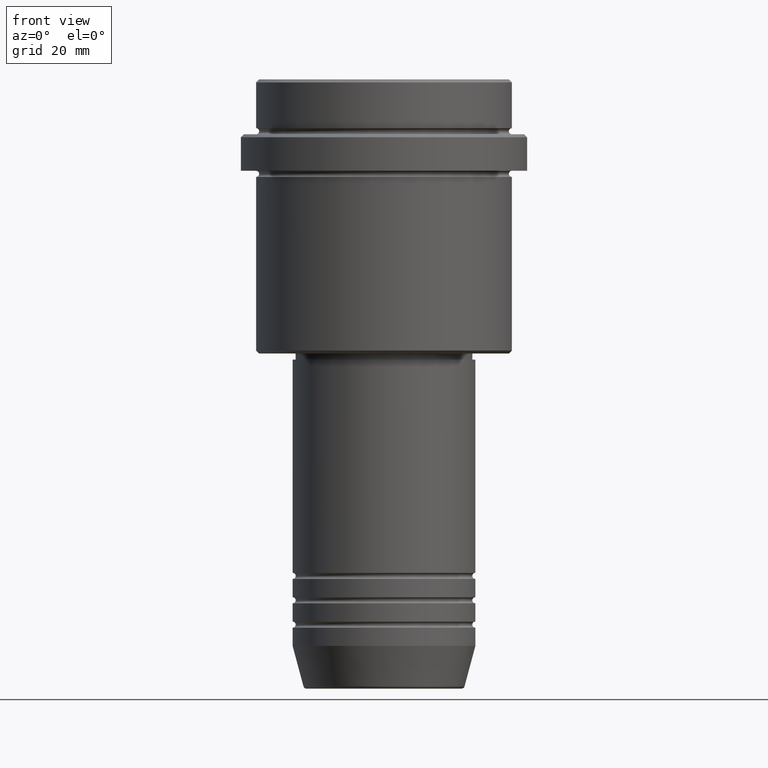
[diagram: clean part render]
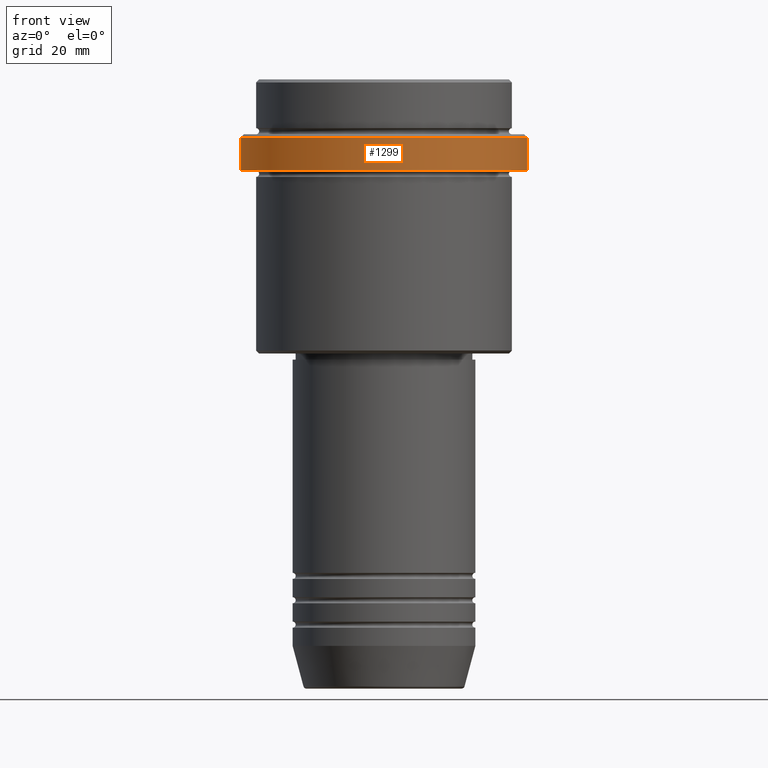
[diagram: same view with one face highlighted and labeled with its STEP entity id]
A machine part, front view. The second image highlights one B-rep face of the part: STEP entity #1299.
In plain terms, the highlighted cylindrical surface (partial cylindrical patch) has radius 23.5 mm, axis along (-0, -0, 1).
Its self-contained STEP definition (entity closure, byte-faithful):
#14 = VERTEX_POINT ( 'NONE', #471 ) ;
#16 = CYLINDRICAL_SURFACE ( 'NONE', #921, 23.50000000000000000 ) ;
#27 = CARTESIAN_POINT ( 'NONE',  ( 23.50000000000000355, 0.000000000000000000, -15.00000000000000000 ) ) ;
#31 = CARTESIAN_POINT ( 'NONE',  ( 0.000000000000000000, 0.000000000000000000, -9.500000000000014211 ) ) ;
#57 = VECTOR ( 'NONE', #969, 1000.000000000000000 ) ;
#125 = CIRCLE ( 'NONE', #719, 23.50000000000000000 ) ;
#197 = CARTESIAN_POINT ( 'NONE',  ( -23.50000000000000000, 2.877919977996280320E-15, 0.000000000000000000 ) ) ;
#262 = CARTESIAN_POINT ( 'NONE',  ( 23.50000000000000000, 0.000000000000000000, 0.000000000000000000 ) ) ;
#270 = ORIENTED_EDGE ( 'NONE', *, *, #1285, .T. ) ;
#286 = VERTEX_POINT ( 'NONE', #497 ) ;
#339 = DIRECTION ( 'NONE',  ( 1.000000000000000000, 0.000000000000000000, 0.000000000000000000 ) ) ;
#461 = EDGE_LOOP ( 'NONE', ( #583, #633, #644, #270 ) ) ;
#468 = CARTESIAN_POINT ( 'NONE',  ( 0.000000000000000000, 0.000000000000000000, -15.00000000000000000 ) ) ;
#471 = CARTESIAN_POINT ( 'NONE',  ( -23.50000000000000000, 2.877919977996280320E-15, -9.500000000000014211 ) ) ;
#497 = CARTESIAN_POINT ( 'NONE',  ( 23.50000000000000000, 0.000000000000000000, -9.500000000000014211 ) ) ;
#526 = DIRECTION ( 'NONE',  ( 1.000000000000000000, 0.000000000000000000, 0.000000000000000000 ) ) ;
#559 = EDGE_CURVE ( 'NONE', #671, #286, #1029, .T. ) ;
#563 = CARTESIAN_POINT ( 'NONE',  ( 0.000000000000000000, 0.000000000000000000, 0.000000000000000000 ) ) ;
#583 = ORIENTED_EDGE ( 'NONE', *, *, #1047, .F. ) ;
#633 = ORIENTED_EDGE ( 'NONE', *, *, #875, .T. ) ;
#644 = ORIENTED_EDGE ( 'NONE', *, *, #559, .T. ) ;
#671 = VERTEX_POINT ( 'NONE', #27 ) ;
#692 = DIRECTION ( 'NONE',  ( -0.000000000000000000, -0.000000000000000000, 1.000000000000000000 ) ) ;
#694 = DIRECTION ( 'NONE',  ( -0.000000000000000000, -0.000000000000000000, 1.000000000000000000 ) ) ;
#719 = AXIS2_PLACEMENT_3D ( 'NONE', #31, #1096, #794 ) ;
#748 = LINE ( 'NONE', #197, #57 ) ;
#756 = AXIS2_PLACEMENT_3D ( 'NONE', #468, #692, #526 ) ;
#794 = DIRECTION ( 'NONE',  ( 1.000000000000000000, 0.000000000000000000, 0.000000000000000000 ) ) ;
#875 = EDGE_CURVE ( 'NONE', #1188, #671, #1375, .T. ) ;
#890 = DIRECTION ( 'NONE',  ( -0.000000000000000000, -0.000000000000000000, 1.000000000000000000 ) ) ;
#921 = AXIS2_PLACEMENT_3D ( 'NONE', #563, #890, #339 ) ;
#969 = DIRECTION ( 'NONE',  ( -0.000000000000000000, -0.000000000000000000, 1.000000000000000000 ) ) ;
#988 = FACE_OUTER_BOUND ( 'NONE', #461, .T. ) ;
#1002 = CARTESIAN_POINT ( 'NONE',  ( -23.50000000000000711, 2.877919977996281109E-15, -15.00000000000000000 ) ) ;
#1029 = LINE ( 'NONE', #262, #1048 ) ;
#1047 = EDGE_CURVE ( 'NONE', #1188, #14, #748, .T. ) ;
#1048 = VECTOR ( 'NONE', #694, 1000.000000000000000 ) ;
#1096 = DIRECTION ( 'NONE',  ( 0.000000000000000000, 0.000000000000000000, -1.000000000000000000 ) ) ;
#1188 = VERTEX_POINT ( 'NONE', #1002 ) ;
#1285 = EDGE_CURVE ( 'NONE', #286, #14, #125, .T. ) ;
#1299 = ADVANCED_FACE ( 'NONE', ( #988 ), #16, .T. ) ;
#1375 = CIRCLE ( 'NONE', #756, 23.50000000000000355 ) ;